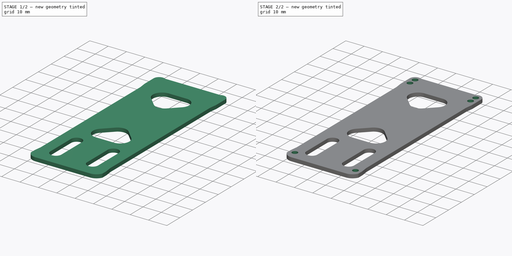
[diagram: build sequence overview — one tinted view per stage of 2, left to right]
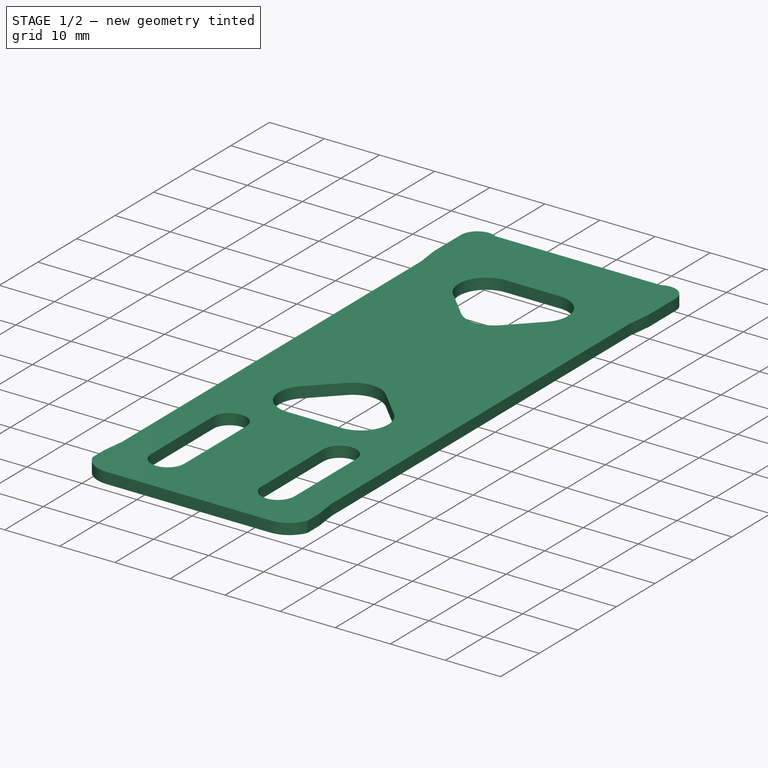
[diagram: stage 1 of 2 — iso view after this stage's code; geometry added in this stage tinted green]
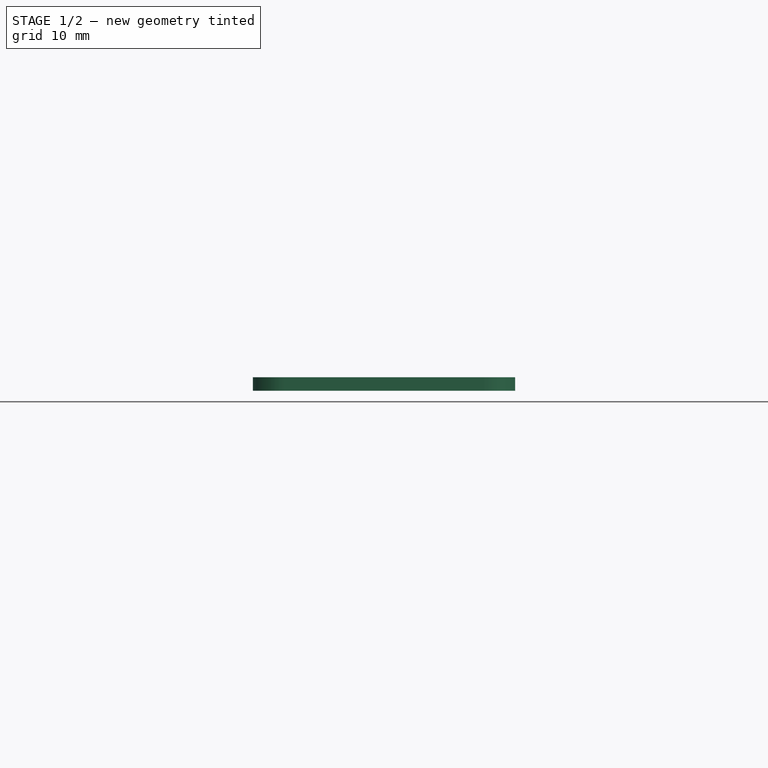
[diagram: stage 1 of 2 — front view after this stage's code; geometry added in this stage tinted green]
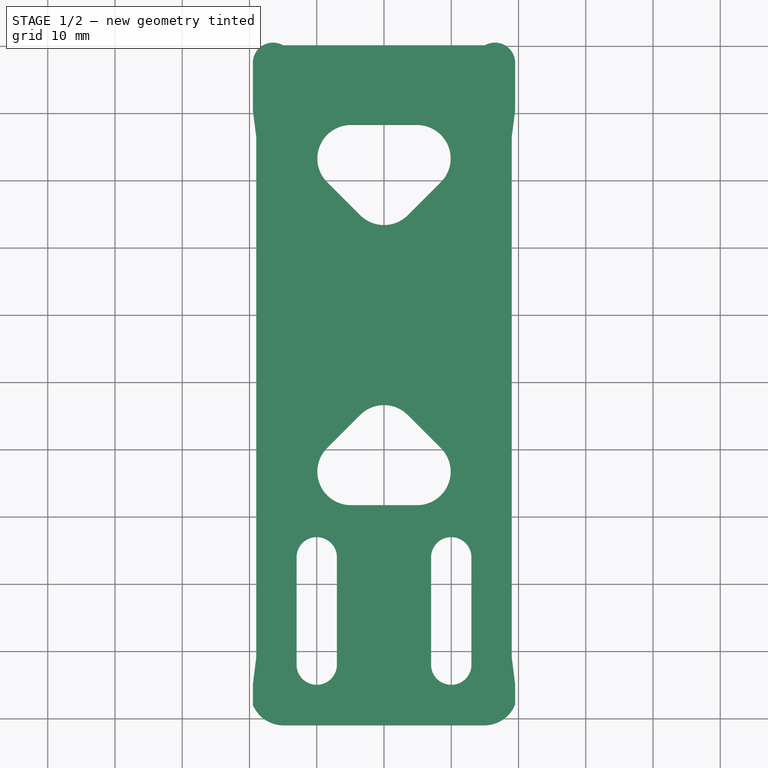
[diagram: stage 1 of 2 — top view after this stage's code; geometry added in this stage tinted green]
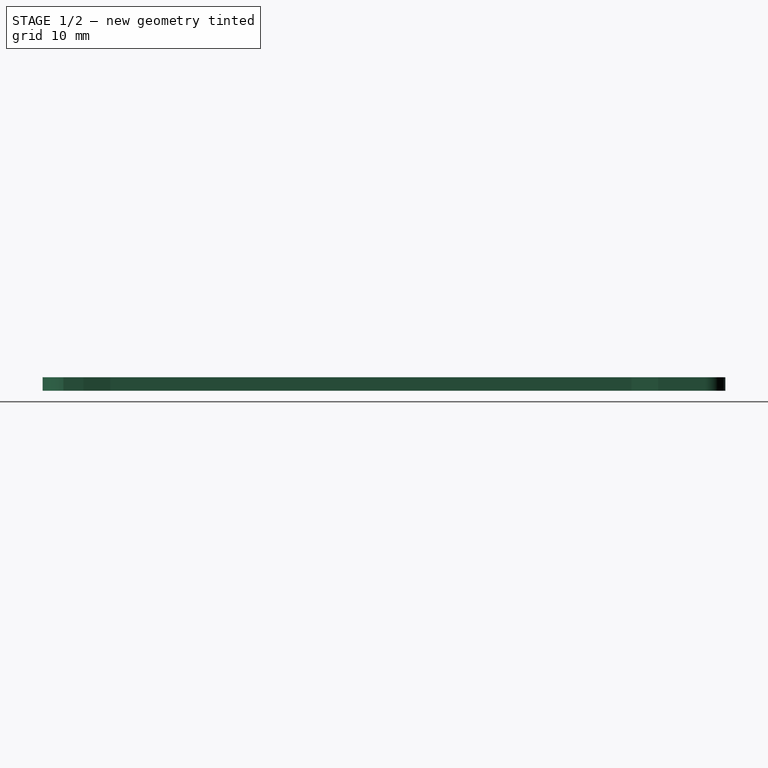
[diagram: stage 1 of 2 — right view after this stage's code; geometry added in this stage tinted green]
FCSTD DOCUMENT  (FreeCAD 0.18RUnknown)
Label: landing
License: All rights reserved
LicenseURL: http://en.wikipedia.org/wiki/All_rights_reserved
objects: Sketcher::SketchObject×2, PartDesign::Pad×1, PartDesign::Pocket×1, PartDesign::Body×1
note: 7 computed .brp shape members not serialized (recipe doc carries the construction recipe); baked Part::Feature solids carry a one-line shape summary decoded from their .brp

FEATURE [Sketcher::SketchObject] Sketch001
  MapMode = 5
  Placement = pos=(0,0,2) rot=(0,0,1;0rad)
  expr: Constraints[19] = anomaly#Spreadsheet.aluHoleDist
  sketch-geometry (13):
    g0: Circle CenterX=-16.5 CenterY=33.5 CenterZ=0 NormalX=0 NormalY=0 NormalZ=1 AngleXU=0 Radius=1.5
    g1: Circle CenterX=16.5 CenterY=33.5 CenterZ=0 NormalX=0 NormalY=0 NormalZ=1 AngleXU=0 Radius=1.5
    g2: LineSegment [constr] StartX=-16.5 StartY=33.5 StartZ=0 EndX=16.5 EndY=33.5 EndZ=0
    g3: LineSegment [constr] StartX=16.5 StartY=33.5 StartZ=0 EndX=16.5 EndY=-56 EndZ=0
    g4: LineSegment [constr] StartX=16.5 StartY=-56 StartZ=0 EndX=-16.5 EndY=-56 EndZ=0
    g5: LineSegment [constr] StartX=-16.5 StartY=-56 StartZ=0 EndX=-16.5 EndY=33.5 EndZ=0
    g6: Circle CenterX=16.5 CenterY=-56 CenterZ=0 NormalX=0 NormalY=0 NormalZ=1 AngleXU=0 Radius=1.5
    g7: Circle CenterX=-16.5 CenterY=-56 CenterZ=0 NormalX=0 NormalY=0 NormalZ=1 AngleXU=0 Radius=1.5
    g8: LineSegment [constr] StartX=-16.5 StartY=33.5 StartZ=0 EndX=-16.5 EndY=37.5 EndZ=0
    g9: LineSegment [constr] StartX=-16.5 StartY=37.5 StartZ=0 EndX=16.5 EndY=37.5 EndZ=0
    g10: LineSegment [constr] StartX=16.5 StartY=37.5 StartZ=0 EndX=16.5 EndY=33.5 EndZ=0
    g11: Circle CenterX=16.5 CenterY=37.5 CenterZ=0 NormalX=0 NormalY=0 NormalZ=1 AngleXU=0 Radius=1.5
    g12: Circle CenterX=-16.5 CenterY=37.5 CenterZ=0 NormalX=0 NormalY=0 NormalZ=1 AngleXU=0 Radius=1.5
  constraints (32):
    c: Radius(g0) = 1.5
    c: Equal(g0,g1)
    c: Coincident(g2,g3)
    c: Coincident(g3,g4)
    c: Coincident(g4,g5)
    c: Coincident(g5,g2)
    c: Horizontal(g2)
    c: Horizontal(g4)
    c: Vertical(g3)
    c: Vertical(g5)
    c: Coincident(g2,g0)
    c: Coincident(g2,g1)
    c: Symmetric(g4,g3,g-2)
    c: DistanceY(g3,g-1) = 56
    c: Coincident(g6,g3)
    c: Coincident(g7,g4)
    c: Equal(g7,g6)
    c: Equal(g6,g1)
    c: DistanceY(g-1,g1) = 33.5
    c: DistanceX(g0,g1) = 33
    c: Coincident(g8,g0)
    c: Vertical(g8)
    c: Coincident(g9,g8)
    c: Horizontal(g9)
    c: Coincident(g10,g9)
    c: Coincident(g10,g1)
    c: Vertical(g10)
    c: DistanceY(g1,g9) = 4
    c: Coincident(g12,g8)
    c: Equal(g12,g0)
    c: Equal(g11,g12)
    c: Coincident(g11,g9)
FEATURE [Sketcher::SketchObject] Sketch
  MapMode = 5
  Support = -> [XY_Plane]
  expr: Constraints[84] = Sketch001.Constraints[27]
  expr: Constraints[76] = Sketch001.Constraints[19]
  expr: Constraints[61] = anomaly#Spreadsheet.bodyWidth
  expr: Constraints[4] = anomaly#Spreadsheet.electroMounting
  expr: Constraints[70] = Sketch001.Constraints[13]
  expr: Constraints[75] = Sketch001.Constraints[18]
  expr: Constraints[62] = Sketch001.Constraints[0]
  sketch-geometry (53):
    g0: LineSegment [constr] StartX=-15.25 StartY=15.25 StartZ=0 EndX=15.25 EndY=15.25 EndZ=0
    g1: LineSegment [constr] StartX=15.25 StartY=-15.25 StartZ=0 EndX=-15.25 EndY=-15.25 EndZ=0
    g2: LineSegment [constr] StartX=-15.25 StartY=-15.25 StartZ=0 EndX=-15.25 EndY=15.25 EndZ=0
    g3: LineSegment StartX=-14.8864 StartY=-61 StartZ=0 EndX=14.8864 EndY=-61 EndZ=0
    g4: LineSegment [constr] StartX=15.25 StartY=15.25 StartZ=0 EndX=15.25 EndY=-15.25 EndZ=0
    g5: ArcOfCircle CenterX=-10 CenterY=-36 CenterZ=0 NormalX=0 NormalY=0 NormalZ=1 AngleXU=0 Radius=3 StartAngle=0 EndAngle=3.14159
    g6: ArcOfCircle CenterX=-10 CenterY=-52 CenterZ=0 NormalX=0 NormalY=0 NormalZ=1 AngleXU=0 Radius=3 StartAngle=3.14159 EndAngle=6.28319
    g7: LineSegment StartX=-13 StartY=-36 StartZ=0 EndX=-13 EndY=-52 EndZ=0
    g8: LineSegment StartX=-7 StartY=-36 StartZ=0 EndX=-7 EndY=-52 EndZ=0
    g9: ArcOfCircle CenterX=10 CenterY=-36 CenterZ=0 NormalX=0 NormalY=0 NormalZ=1 AngleXU=0 Radius=3 StartAngle=0 EndAngle=3.14159
    g10: ArcOfCircle CenterX=10 CenterY=-52 CenterZ=0 NormalX=0 NormalY=0 NormalZ=1 AngleXU=0 Radius=3 StartAngle=3.14159 EndAngle=6.28319
    g11: LineSegment StartX=7 StartY=-36 StartZ=0 EndX=7 EndY=-52 EndZ=0
    g12: LineSegment StartX=13 StartY=-36 StartZ=0 EndX=13 EndY=-52 EndZ=0
    g13: LineSegment StartX=-8.45053 StartY=19.7494 StartZ=0 EndX=-3.53553 EndY=14.8344 EndZ=0
    g14: LineSegment StartX=3.53553 StartY=14.8344 StartZ=0 EndX=8.45053 EndY=19.7494 EndZ=0
    g15: LineSegment StartX=4.915 StartY=28.285 StartZ=0 EndX=-4.915 EndY=28.285 EndZ=0
    g16: LineSegment StartX=3.53553 StartY=-14.8344 StartZ=0 EndX=8.45053 EndY=-19.7494 EndZ=0
    g17: LineSegment StartX=4.915 StartY=-28.285 StartZ=0 EndX=-4.915 EndY=-28.285 EndZ=0
    g18: LineSegment StartX=-8.45053 StartY=-19.7494 StartZ=0 EndX=-3.53553 EndY=-14.8344 EndZ=0
    g19: ArcOfCircle CenterX=-4.915 CenterY=23.285 CenterZ=0 NormalX=0 NormalY=0 NormalZ=1 AngleXU=0 Radius=5 StartAngle=1.5708 EndAngle=3.92699
    g20: ArcOfCircle CenterX=4.915 CenterY=23.285 CenterZ=0 NormalX=0 NormalY=0 NormalZ=1 AngleXU=0 Radius=5 StartAngle=5.49779 EndAngle=7.85398
    g21: ArcOfCircle CenterX=0 CenterY=18.37 CenterZ=0 NormalX=0 NormalY=0 NormalZ=1 AngleXU=0 Radius=5 StartAngle=3.92699 EndAngle=5.49779
    g22: ArcOfCircle CenterX=0 CenterY=-18.37 CenterZ=0 NormalX=0 NormalY=0 NormalZ=1 AngleXU=0 Radius=5 StartAngle=0.785398 EndAngle=2.35619
    g23: ArcOfCircle CenterX=4.915 CenterY=-23.285 CenterZ=0 NormalX=0 NormalY=0 NormalZ=1 AngleXU=0 Radius=5 StartAngle=4.71239 EndAngle=7.06858
    g24: ArcOfCircle CenterX=-4.915 CenterY=-23.285 CenterZ=0 NormalX=0 NormalY=0 NormalZ=1 AngleXU=0 Radius=5 StartAngle=2.35619 EndAngle=4.71239
    g25: ArcOfCircle CenterX=14.8864 CenterY=-56 CenterZ=0 NormalX=0 NormalY=0 NormalZ=1 AngleXU=0 Radius=5 StartAngle=4.71239 EndAngle=5.88749
    g26: ArcOfCircle CenterX=-14.8864 CenterY=-56 CenterZ=0 NormalX=0 NormalY=0 NormalZ=1 AngleXU=0 Radius=5 StartAngle=3.53729 EndAngle=4.71239
    g27: Circle [constr] CenterX=-16.5 CenterY=33.5 CenterZ=0 NormalX=0 NormalY=0 NormalZ=1 AngleXU=0 Radius=1.5
    g28: Circle [constr] CenterX=16.5 CenterY=33.5 CenterZ=0 NormalX=0 NormalY=0 NormalZ=1 AngleXU=0 Radius=1.5
    g29: LineSegment [constr] StartX=-16.5 StartY=33.5 StartZ=0 EndX=16.5 EndY=33.5 EndZ=0
    g30: LineSegment [constr] StartX=16.5 StartY=33.5 StartZ=0 EndX=16.5 EndY=-56 EndZ=0
    g31: LineSegment [constr] StartX=16.5 StartY=-56 StartZ=0 EndX=-16.5 EndY=-56 EndZ=0
    g32: LineSegment [constr] StartX=-16.5 StartY=-56 StartZ=0 EndX=-16.5 EndY=33.5 EndZ=0
    g33: Circle [constr] CenterX=16.5 CenterY=-56 CenterZ=0 NormalX=0 NormalY=0 NormalZ=1 AngleXU=0 Radius=1.5
    g34: Circle [constr] CenterX=-16.5 CenterY=-56 CenterZ=0 NormalX=0 NormalY=0 NormalZ=1 AngleXU=0 Radius=1.5
    g35: LineSegment [constr] StartX=-16.5 StartY=33.5 StartZ=0 EndX=-16.5 EndY=37.5 EndZ=0
    g36: LineSegment [constr] StartX=-16.5 StartY=37.5 StartZ=0 EndX=16.5 EndY=37.5 EndZ=0
    g37: LineSegment [constr] StartX=16.5 StartY=37.5 StartZ=0 EndX=16.5 EndY=33.5 EndZ=0
    g38: Circle [constr] CenterX=16.5 CenterY=37.5 CenterZ=0 NormalX=0 NormalY=0 NormalZ=1 AngleXU=0 Radius=1.5
    g39: Circle [constr] CenterX=-16.5 CenterY=37.5 CenterZ=0 NormalX=0 NormalY=0 NormalZ=1 AngleXU=0 Radius=1.5
    g40: LineSegment StartX=-19 StartY=26.5314 StartZ=0 EndX=-19.5 EndY=30.5 EndZ=0
    g41: LineSegment StartX=-19.5 StartY=30.5 StartZ=0 EndX=-19.5 EndY=37.5 EndZ=0
    g42: ArcOfCircle CenterX=-16.5 CenterY=37.5 CenterZ=0 NormalX=0 NormalY=0 NormalZ=1 AngleXU=0 Radius=3 StartAngle=1.0472 EndAngle=3.14159
    g43: LineSegment StartX=19 StartY=26.5314 StartZ=0 EndX=19.5 EndY=30.5 EndZ=0
    g44: LineSegment StartX=19.5 StartY=30.5 StartZ=0 EndX=19.5 EndY=37.5 EndZ=0
    g45: ArcOfCircle CenterX=16.5 CenterY=37.5 CenterZ=0 NormalX=0 NormalY=0 NormalZ=1 AngleXU=0 Radius=3 StartAngle=0 EndAngle=2.0944
    g46: LineSegment StartX=-15 StartY=40.0981 StartZ=0 EndX=15 EndY=40.0981 EndZ=0
    g47: LineSegment StartX=19 StartY=26.5314 StartZ=0 EndX=19 EndY=-50.9586 EndZ=0
    g48: LineSegment StartX=19 StartY=-50.9586 StartZ=0 EndX=19.5 EndY=-54.9273 EndZ=0
    g49: LineSegment StartX=19.5 StartY=-54.9273 StartZ=0 EndX=19.5 EndY=-57.9273 EndZ=0
    g50: LineSegment StartX=-19 StartY=26.5314 StartZ=0 EndX=-19 EndY=-50.9586 EndZ=0
    g51: LineSegment StartX=-19 StartY=-50.9586 StartZ=0 EndX=-19.5 EndY=-54.9273 EndZ=0
    g52: LineSegment StartX=-19.5 StartY=-54.9273 StartZ=0 EndX=-19.5 EndY=-57.9273 EndZ=0
  constraints (135):
    c: Coincident(g1,g2)
    c: Horizontal(g0)
    c: Horizontal(g1)
    c: Vertical(g2)
    c: DistanceY(g1,g0) = 30.5
    c: Coincident(g4,g0)
    c: Coincident(g4,g1)
    c: Vertical(g4)
    c: Coincident(g0,g2)
    c: Symmetric(g0,g1,g-1)
    c: Equal(g2,g0)
    c: Tangent(g5,g8) = 1.5708
    c: Tangent(g5,g7) = -1.5708
    c: Tangent(g7,g6) = -1.5708
    c: Tangent(g8,g6) = 1.5708
    c: Vertical(g7)
    c: Equal(g5,g6)
    c: Tangent(g9,g12) = 1.5708
    c: Tangent(g9,g11) = -1.5708
    c: Tangent(g11,g10) = -1.5708
    c: Tangent(g12,g10) = 1.5708
    c: Vertical(g11)
    c: Equal(g9,g10)
    c: Equal(g11,g8)
    c: Equal(g5,g9)
    c: Symmetric(g5,g9,g-2)
    c: Horizontal(g15)
    c: Tangent(g15,g19) = -1.5708
    c: Tangent(g13,g19) = -1.5708
    c: Tangent(g15,g20) = -1.5708
    c: Tangent(g14,g20) = -1.5708
    c: Tangent(g13,g21) = -1.5708
    c: Tangent(g14,g21) = -1.5708
    c: Equal(g20,g19)
    c: Equal(g19,g21)
    c: Radius(g20) = 5
    c: Tangent(g18,g22) = 1.5708
    c: Tangent(g16,g22) = 1.5708
    c: Tangent(g16,g23) = 1.5708
    c: Tangent(g17,g23) = 1.5708
    c: Tangent(g18,g24) = 1.5708
    c: Tangent(g17,g24) = 1.5708
    c: Equal(g22,g23)
    c: Equal(g23,g24)
    c: Equal(g23,g21)
    c: DistanceX(g6,g10) = 20
    c: DistanceY(g10,g9) = 16
    c: DistanceY(g9,g-1) = 36
    c: Radius(g10) = 3
    c: Tangent(g3,g25) = -1.5708
    c: Tangent(g3,g26) = -1.5708
    c: Equal(g26,g25)
    c: Radius(g26) = 5
    c: DistanceY(g3,g-1) = 61
    c: Symmetric(g22,g21,g-1)
    c: PointOnObject(g21,g-2)
    c: DistanceX(g15,g15) = 9.83
    c: Equal(g15,g17)
    c: Equal(g18,g16)
    c: Equal(g13,g14)
    c: Equal(g13,g18)
    c: DistanceX(g40,g43) = 38
    c: Radius(g27) = 1.5
    c: Equal(g27,g28)
    c: Coincident(g29,g30)
    c: Coincident(g31,g32)
    c: Coincident(g32,g29)
    c: Vertical(g30)
    c: Coincident(g29,g27)
    c: Coincident(g29,g28)
    c: DistanceY(g30,g-1) = 56
    c: Coincident(g33,g30)
    c: Coincident(g34,g31)
    c: Equal(g34,g33)
    c: Equal(g33,g28)
    c: DistanceY(g-1,g28) = 33.5
    c: DistanceX(g27,g28) = 33
    c: Coincident(g35,g27)
    c: Vertical(g35)
    c: Coincident(g36,g35)
    c: Horizontal(g36)
    c: Coincident(g37,g36)
    c: Coincident(g37,g28)
    c: Vertical(g37)
    c: DistanceY(g28,g36) = 4
    c: Coincident(g39,g35)
    c: Equal(g39,g27)
    c: Equal(g38,g39)
    c: Coincident(g38,g36)
    c: Symmetric(g40,g43,g-2)
    c: Coincident(g31,g30)
    c: Equal(g32,g30)
    c: Equal(g31,g29)
    c: Symmetric(g27,g28,g-2)
    c: DistanceY(g22) = -18.37
    c: Perpendicular(g18,g16)
    c: Perpendicular(g30,g17)
    c: Coincident(g41,g40)
    c: Vertical(g41)
    c: Coincident(g42,g35)
    c: Tangent(g42,g41) = 1.5708
    c: Coincident(g44,g43)
    c: Vertical(g44)
    c: Coincident(g46,g42)
    c: Coincident(g46,g45)
    c: Horizontal(g46)
    c: Equal(g45,g42)
    c: Equal(g40,g43)
    c: Equal(g41,g44)
    c: Tangent(g45,g44) = -1.5708
    c: DistanceX(g41,g44) = 39
    c: Radius(g42) = 3
    c: Distance(g43) = 4
    c: DistanceX(g42,g45) = 30
    c: DistanceY(g44,g44) = 7
    c: Coincident(g47,g43)
    c: Vertical(g47)
    c: Coincident(g48,g47)
    c: Coincident(g49,g48)
    c: Vertical(g49)
    c: Coincident(g25,g49)
    c: Coincident(g50,g40)
    c: Vertical(g50)
    c: Coincident(g51,g50)
    c: Coincident(g52,g51)
    c: Vertical(g52)
    c: Coincident(g26,g52)
    c: Equal(g52,g49)
    c: Equal(g51,g48)
    c: Equal(g43,g48)
    c: DistanceX(g26,g25) = 39
    c: Equal(g50,g47)
    c: Symmetric(g3,g3,g-2)
    c: DistanceY(g52,g52) = 3
    c: DistanceY(g47,g47) = 77.49
FEATURE [PartDesign::Pad] Pad
  Length = 2
  Length2 = 100
  Profile = -> Sketch
  Type = 0
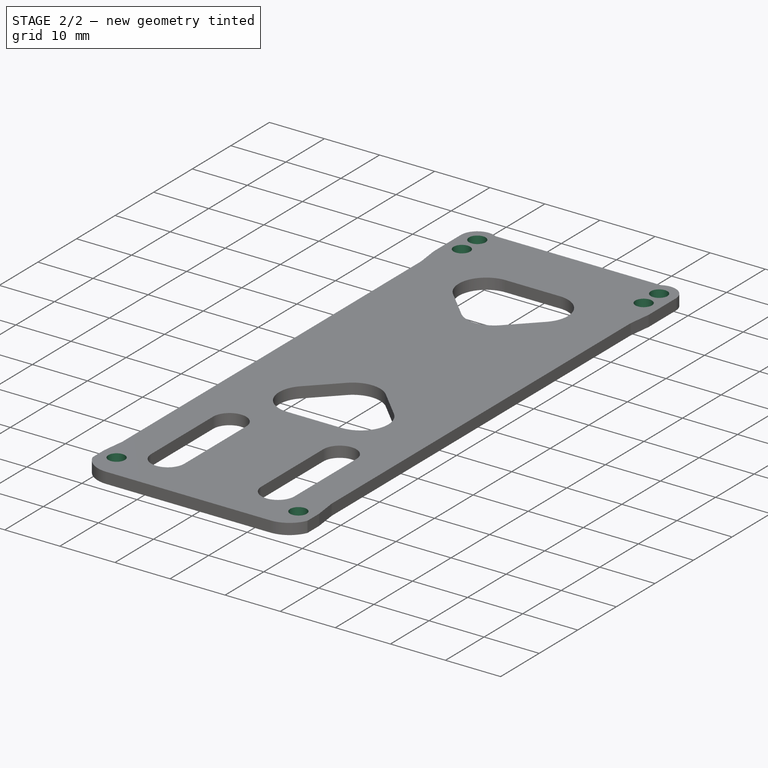
[diagram: stage 2 of 2 — iso view after this stage's code; geometry added in this stage tinted green]
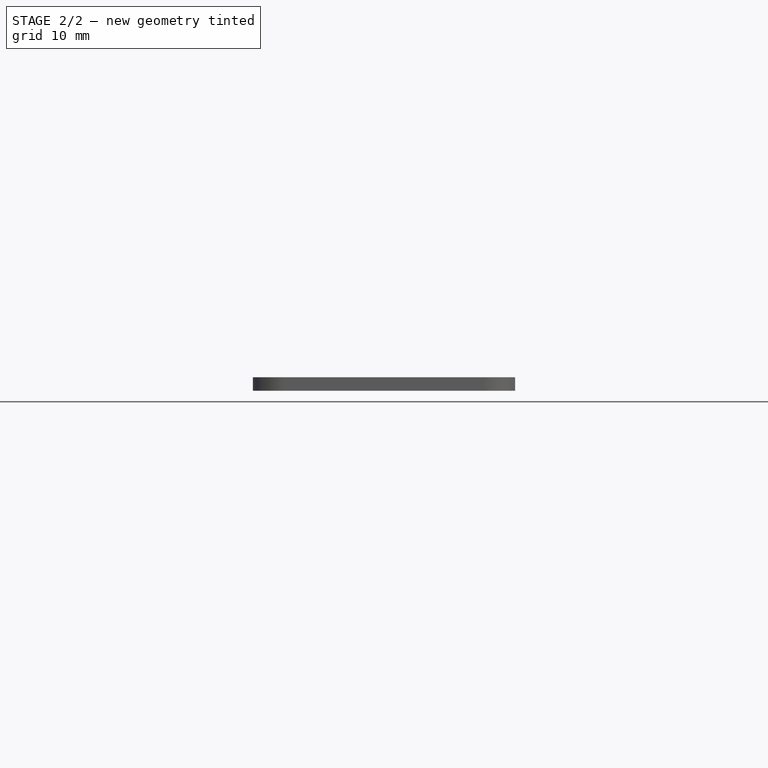
[diagram: stage 2 of 2 — front view after this stage's code; geometry added in this stage tinted green]
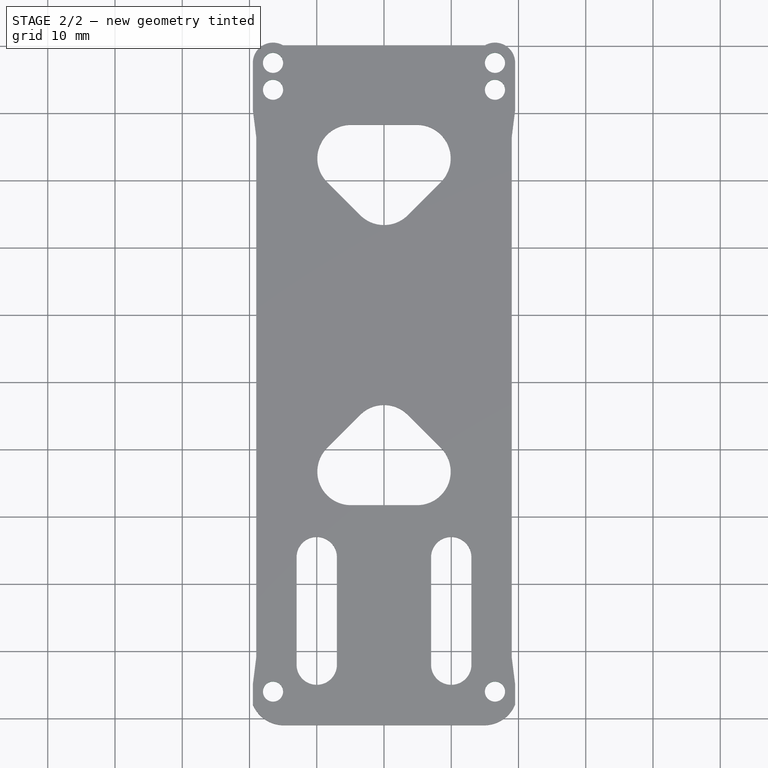
[diagram: stage 2 of 2 — top view after this stage's code; geometry added in this stage tinted green]
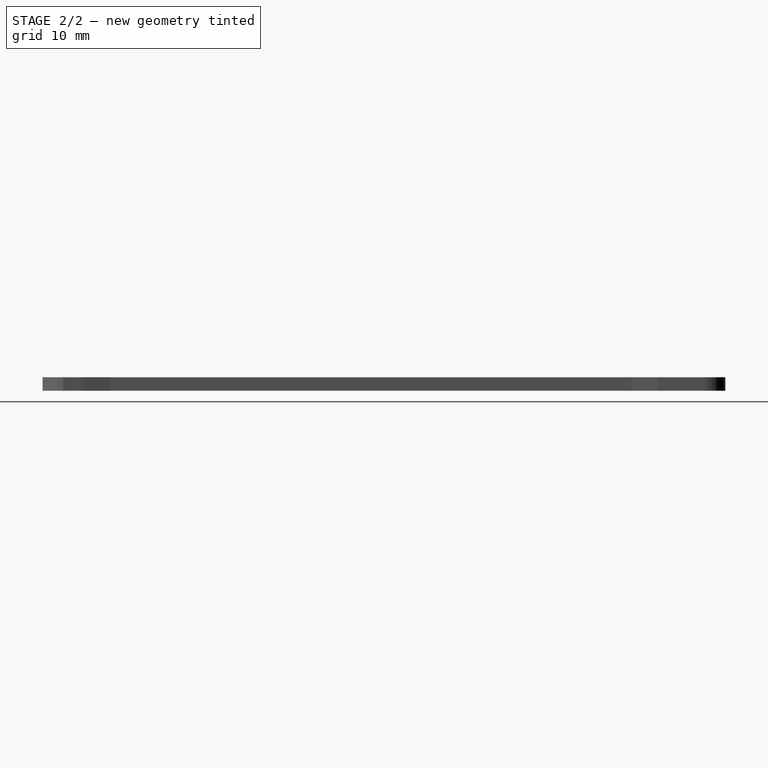
[diagram: stage 2 of 2 — right view after this stage's code; geometry added in this stage tinted green]
FEATURE [PartDesign::Pocket] Pocket
  BaseFeature = -> Pad
  Length = 5
  Length2 = 100
  Profile = -> Sketch001
  Type = 1
FEATURE [PartDesign::Body] Body
  Group = -> [Sketch,Pad,Sketch001,Pocket]
  Origin = -> Origin
  Tip = -> Pocket
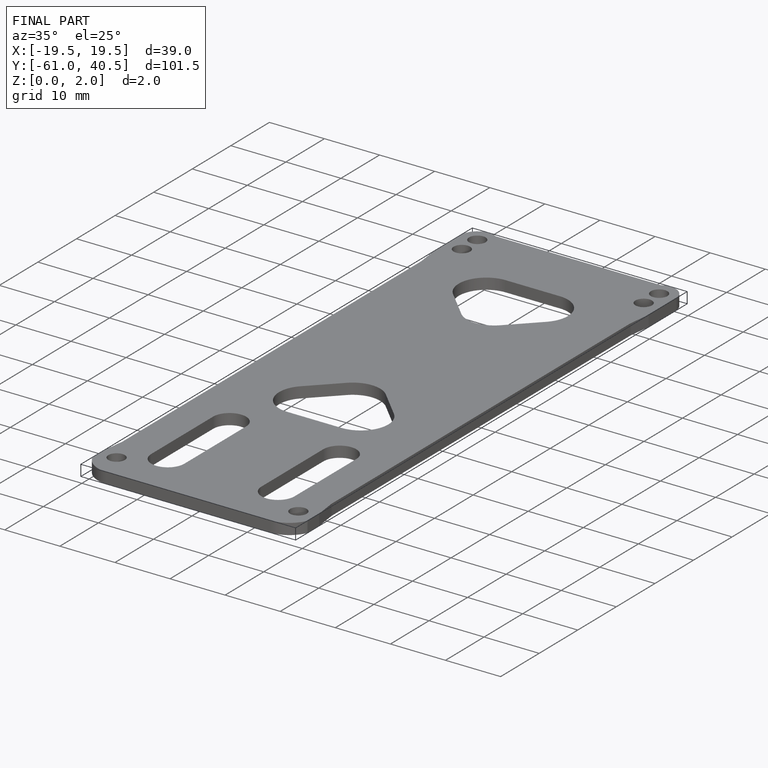
[diagram: finished part — iso view with bounding-box wireframe]
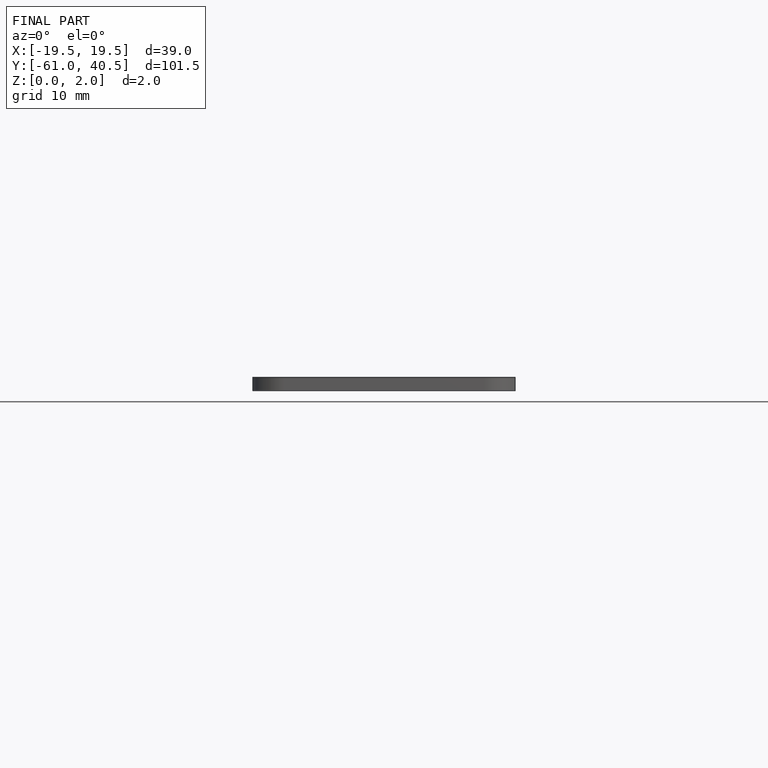
[diagram: finished part — front view with bounding-box wireframe]
